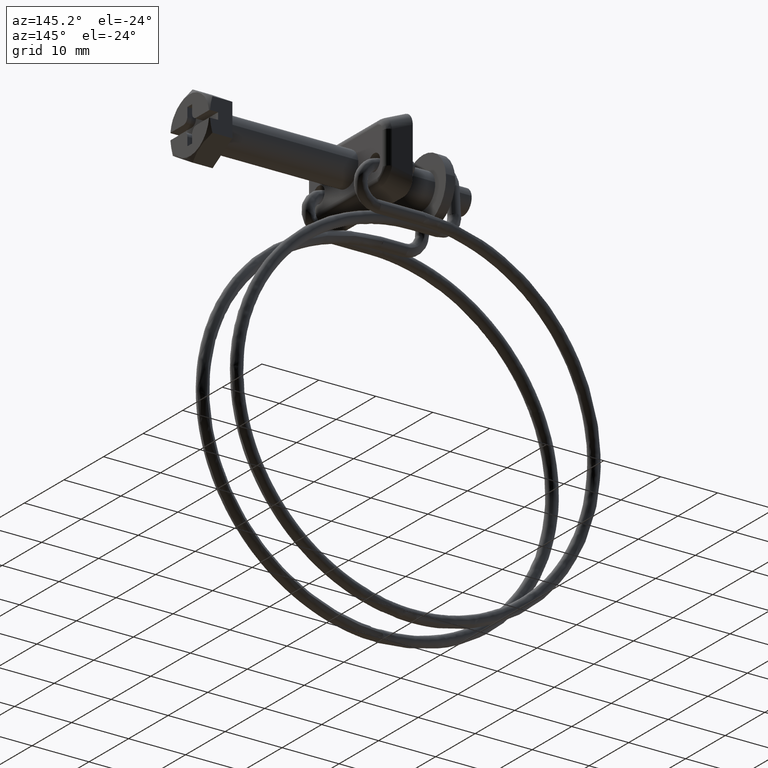
[diagram: clean part render]
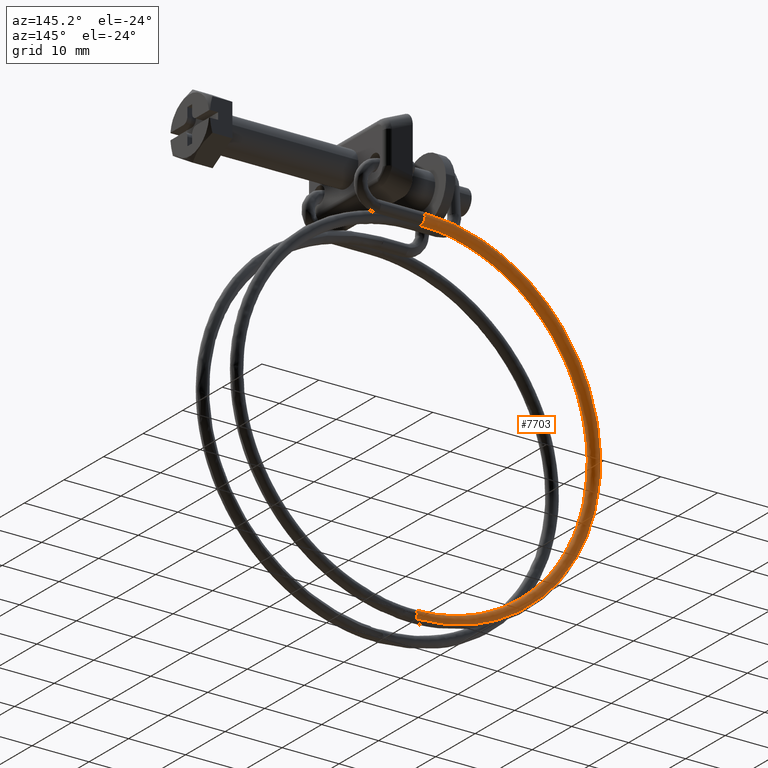
[diagram: same view with one face highlighted and labeled with its STEP entity id]
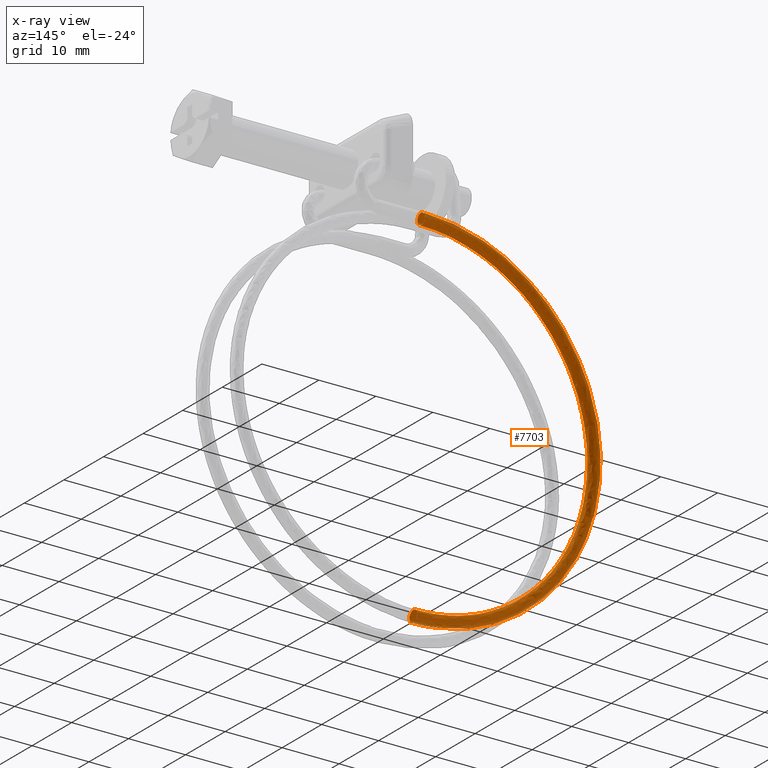
[diagram: x-ray of the same camera — body ghosted, the highlighted face saturated]
A machine part, auxiliary view. The second image highlights one B-rep face of the part: STEP entity #7703.
The next image is the same camera in x-ray: the body ghosted, the highlighted face saturated — about 0% of this face is hidden behind the body in this view.
In plain terms, the highlighted face is a freeform B-spline surface patch.
Its self-contained STEP definition (entity closure, byte-faithful):
#5722=CARTESIAN_POINT('',(-32.250000000001229,6.019897506656855,-6.893510855856247));
#5723=VERTEX_POINT('',#5722);
#5724=CARTESIAN_POINT('',(-32.250000000001243,6.374772539207871,-6.852100822124970));
#5725=VERTEX_POINT('',#5724);
#5726=CARTESIAN_POINT('',(-32.250000000001229,6.019897506656855,-6.893510855856247));
#5727=CARTESIAN_POINT('',(-32.250000000001229,6.134507705592427,-6.858807957711943));
#5728=CARTESIAN_POINT('',(-32.250000000001243,6.255203050966743,-6.844190522424267));
#5729=CARTESIAN_POINT('',(-32.250000000001243,6.374772539207871,-6.852100822124970));
#5730=B_SPLINE_CURVE_WITH_KNOTS('',3,(#5726,#5727,#5728,#5729),.UNSPECIFIED.,.F.,.U.,(4,4),(0.942811831421863,1.0),.UNSPECIFIED.);
#5731=EDGE_CURVE('',#5723,#5725,#5730,.T.);
#5784=CARTESIAN_POINT('',(-32.249999999482711,5.310047783035156,-7.846272508476856));
#5785=VERTEX_POINT('',#5784);
#5791=CARTESIAN_POINT('',(-32.250000000001222,6.245231271699173,-8.847901177875052));
#5792=VERTEX_POINT('',#5791);
#5793=CARTESIAN_POINT('',(-32.250000000001222,6.245231271699173,-8.847901177875052));
#5794=CARTESIAN_POINT('',(-32.249999999929067,5.983976199701746,-8.830944258154418));
#5795=CARTESIAN_POINT('',(-32.249999999829413,5.731308326816023,-8.706544961363123));
#5796=CARTESIAN_POINT('',(-32.249999999639087,5.399252156851949,-8.328407502336102));
#5797=CARTESIAN_POINT('',(-32.249999999549352,5.309720638134413,-8.087546129222295));
#5798=CARTESIAN_POINT('',(-32.249999999482711,5.310047783035156,-7.846272508476856));
#5799=B_SPLINE_CURVE_WITH_KNOTS('',3,(#5793,#5794,#5795,#5796,#5797,#5798),.UNSPECIFIED.,.F.,.U.,(4,2,4),(0.500000000000001,0.625000000000001,0.740274294737862),.UNSPECIFIED.);
#5800=EDGE_CURVE('',#5792,#5785,#5799,.T.);
#5802=CARTESIAN_POINT('',(-32.250000000001243,7.081757461709143,-7.214116515764815));
#5803=VERTEX_POINT('',#5802);
#5804=CARTESIAN_POINT('',(-32.250000000001243,7.081757461709143,-7.214116515764815));
#5805=CARTESIAN_POINT('',(-32.250000000001222,7.241248246422248,-7.408222404355124));
#5806=CARTESIAN_POINT('',(-32.250000000001222,7.324180694902152,-7.663972337171169));
#5807=CARTESIAN_POINT('',(-32.250000000001222,7.290945171064321,-8.176021289406702));
#5808=CARTESIAN_POINT('',(-32.250000000001222,7.166545884571243,-8.428681681627774));
#5809=CARTESIAN_POINT('',(-32.250000000001222,6.773102383082311,-8.774163792516555));
#5810=CARTESIAN_POINT('',(-32.250000000001222,6.506480927351519,-8.864858090139304));
#5811=CARTESIAN_POINT('',(-32.250000000001222,6.245231271699167,-8.847901177875052));
#5812=B_SPLINE_CURVE_WITH_KNOTS('',3,(#5804,#5805,#5806,#5807,#5808,#5809,#5810,#5811),.UNSPECIFIED.,.F.,.U.,(4,2,2,4),(0.130000178394050,0.250000000000001,0.375000000000001,0.500000000000001),.UNSPECIFIED.);
#5813=EDGE_CURVE('',#5803,#5792,#5812,.T.);
#5845=CARTESIAN_POINT('',(-32.249999999482711,5.310047783035156,-7.846272508476856));
#5846=CARTESIAN_POINT('',(-32.249999999489852,5.310074407605536,-7.825909869953435));
#5847=CARTESIAN_POINT('',(-32.249999999497142,5.310740629261320,-7.805544147238820));
#5848=CARTESIAN_POINT('',(-32.249999999600462,5.328996620805359,-7.523875708844595));
#5849=CARTESIAN_POINT('',(-32.249999999721339,5.453372197134920,-7.271107571601019));
#5850=CARTESIAN_POINT('',(-32.249999999893760,5.756780625886448,-7.004501732714942));
#5851=CARTESIAN_POINT('',(-32.249999999951321,5.884061348319174,-6.934885728901753));
#5852=CARTESIAN_POINT('',(-32.250000000001229,6.019897506656855,-6.893510855856247));
#5853=B_SPLINE_CURVE_WITH_KNOTS('',3,(#5845,#5846,#5847,#5848,#5849,#5850,#5851,#5852),.UNSPECIFIED.,.F.,.U.,(4,2,2,4),(0.740274294737862,0.750000000000001,0.875000000000000,0.942811831421863),.UNSPECIFIED.);
#5854=EDGE_CURVE('',#5785,#5723,#5853,.T.);
#6652=CARTESIAN_POINT('',(-32.250030118507993,4.300001999997921,-70.850000999971741));
#6653=VERTEX_POINT('',#6652);
#6669=CARTESIAN_POINT('',(-32.249999999998799,5.028950365822666,-70.534537336408775));
#6670=VERTEX_POINT('',#6669);
#6680=CARTESIAN_POINT('',(-32.249999999998799,4.300001999997920,-68.850001000000091));
#6681=VERTEX_POINT('',#6680);
#6682=CARTESIAN_POINT('',(-32.249999999998799,5.028950365822666,-70.534537336408775));
#6683=CARTESIAN_POINT('',(-32.249999999998799,5.200678609676848,-70.351169354862066));
#6684=CARTESIAN_POINT('',(-32.249999999998799,5.300001999997920,-70.101328038659986));
#6685=CARTESIAN_POINT('',(-32.249999999998799,5.300001999997920,-69.588201612201004));
#6686=CARTESIAN_POINT('',(-32.249999999998799,5.192228903607729,-69.328014341236809));
#6687=CARTESIAN_POINT('',(-32.249999999998799,4.821988658761200,-68.957774096390295));
#6688=CARTESIAN_POINT('',(-32.249999999998799,4.561801387797070,-68.850001000000091));
#6689=CARTESIAN_POINT('',(-32.249999999998799,4.300001999997920,-68.850001000000091));
#6690=B_SPLINE_CURVE_WITH_KNOTS('',3,(#6682,#6683,#6684,#6685,#6686,#6687,#6688,#6689),.UNSPECIFIED.,.F.,.U.,(4,2,2,4),(0.130000178393912,0.250000000000000,0.375000000000000,0.500000000000000),.UNSPECIFIED.);
#6691=EDGE_CURVE('',#6670,#6681,#6690,.T.);
#6693=CARTESIAN_POINT('',(-32.250000143398744,3.306810115031827,-69.734552577144655));
#6694=VERTEX_POINT('',#6693);
#6695=CARTESIAN_POINT('',(-32.249999999998799,4.300001999997920,-68.850001000000091));
#6696=CARTESIAN_POINT('',(-32.250000021078122,4.038184983407082,-68.849998888287388));
#6697=CARTESIAN_POINT('',(-32.250000049757077,3.777973728021444,-68.957769111638513));
#6698=CARTESIAN_POINT('',(-32.250000101966940,3.434978114600687,-69.300715831233632));
#6699=CARTESIAN_POINT('',(-32.250000125381227,3.333351196564613,-69.513112533559237));
#6700=CARTESIAN_POINT('',(-32.250000143398744,3.306810115031827,-69.734552577144655));
#6701=B_SPLINE_CURVE_WITH_KNOTS('',3,(#6695,#6696,#6697,#6698,#6699,#6700),.UNSPECIFIED.,.F.,.U.,(4,2,4),(0.500000000000000,0.625000000000000,0.731573927143940),.UNSPECIFIED.);
#6702=EDGE_CURVE('',#6681,#6694,#6701,.T.);
#6768=CARTESIAN_POINT('',(-32.250000143398744,3.306810115031827,-69.734552577144655));
#6769=CARTESIAN_POINT('',(-32.250000656129522,3.302225957859444,-69.772838956680815));
#6770=CARTESIAN_POINT('',(-32.250001202866663,3.299886312383937,-69.811395665297979));
#6771=CARTESIAN_POINT('',(-32.250005705966238,3.299904328683126,-70.111788687970275));
#6772=CARTESIAN_POINT('',(-32.250011044756363,3.407698784858643,-70.371978517569246));
#6773=CARTESIAN_POINT('',(-32.250021536300167,3.777981004968855,-70.742223790526808));
#6774=CARTESIAN_POINT('',(-32.250026624448672,4.038188632934677,-70.849999325430929));
#6775=CARTESIAN_POINT('',(-32.250030118507993,4.300001999997921,-70.850000999971741));
#6776=B_SPLINE_CURVE_WITH_KNOTS('',3,(#6768,#6769,#6770,#6771,#6772,#6773,#6774,#6775),.UNSPECIFIED.,.F.,.U.,(4,2,2,4),(0.731573927143940,0.750000000000000,0.875000000000000,1.0),.UNSPECIFIED.);
#6777=EDGE_CURVE('',#6694,#6653,#6776,.T.);
#7363=CARTESIAN_POINT('',(-32.250000000001251,7.081757106056601,-7.214116082923606));
#7364=CARTESIAN_POINT('',(-32.250000000001251,7.241247999844175,-7.408221643949427));
#7365=CARTESIAN_POINT('',(-32.250000000001251,7.324180719102401,-7.663971964327964));
#7366=CARTESIAN_POINT('',(-32.250000000001251,7.290945171064570,-8.176021289406590));
#7367=CARTESIAN_POINT('',(-32.250000000001251,7.166545884571540,-8.428681681627658));
#7368=CARTESIAN_POINT('',(-32.250000000001251,6.773102383082670,-8.774163792516509));
#7369=CARTESIAN_POINT('',(-32.250000000001251,6.506480927351900,-8.864858090139322));
#7370=CARTESIAN_POINT('',(-32.250000000001251,5.983981616047190,-8.830944265610919));
#7371=CARTESIAN_POINT('',(-32.250000000001251,5.731321223826090,-8.706544979117881));
#7372=CARTESIAN_POINT('',(-32.250000000001251,5.385839112937240,-8.313101477629020));
#7373=CARTESIAN_POINT('',(-32.250000000001251,5.295144815314440,-8.046480021898260));
#7374=CARTESIAN_POINT('',(-32.250000000001251,5.329058639842850,-7.523980710593540));
#7375=CARTESIAN_POINT('',(-32.250000000001251,5.453457926335871,-7.271320318372450));
#7376=CARTESIAN_POINT('',(-32.250000000001251,5.846901427824740,-6.925838207483600));
#7377=CARTESIAN_POINT('',(-32.250000000001251,6.113522883555519,-6.835143909860790));
#7378=CARTESIAN_POINT('',(-32.250000000001251,6.374772539207871,-6.852100822124990));
#7379=CARTESIAN_POINT('',(-36.395521321906017,7.081883421341194,-7.214149867424582));
#7380=CARTESIAN_POINT('',(-36.370782988964670,7.241373948595612,-7.408255127161497));
#7381=CARTESIAN_POINT('',(-36.337648178122073,7.324306171954610,-7.664005045231324));
#7382=CARTESIAN_POINT('',(-36.270461560034043,7.291069605652990,-8.176053557837019));
#7383=CARTESIAN_POINT('',(-36.236851237633353,7.166669803077500,-8.428713545396350));
#7384=CARTESIAN_POINT('',(-36.189945185707600,6.773225573853851,-8.774195093372642));
#7385=CARTESIAN_POINT('',(-36.176938295776651,6.506603914763780,-8.864889235350331));
#7386=CARTESIAN_POINT('',(-36.179160894538903,5.984104638258130,-8.830975437400859));
#7387=CARTESIAN_POINT('',(-36.194376696817102,5.731444483731830,-8.706576333058619));
#7388=CARTESIAN_POINT('',(-36.244425978056107,5.385963148143071,-8.313133432481930));
#7389=CARTESIAN_POINT('',(-36.278951261902847,5.295269379564720,-8.046512392739309));
#7390=CARTESIAN_POINT('',(-36.347509035472051,5.329184240891920,-7.524013911066881));
#7391=CARTESIAN_POINT('',(-36.381119357869153,5.453584029114950,-7.271353927230350));
#7392=CARTESIAN_POINT('',(-36.428025409786351,5.847028223724110,-6.925872388108600));
#7393=CARTESIAN_POINT('',(-36.441032299703501,6.113649870213569,-6.835178249461460));
#7394=CARTESIAN_POINT('',(-36.439921000327949,6.374899509589890,-6.852135148147125));
#7395=CARTESIAN_POINT('',(-40.537877786378303,7.055036512206437,-8.038335335161282));
#7396=CARTESIAN_POINT('',(-40.488420546646253,7.214686876221988,-8.227521913984415));
#7397=CARTESIAN_POINT('',(-40.422176944522327,7.297833191757711,-8.476683692386802));
#7398=CARTESIAN_POINT('',(-40.287856467638903,7.265030747490380,-8.975373597493631));
#7399=CARTESIAN_POINT('',(-40.220662215843248,7.140848122555381,-9.221350896781191));
#7400=CARTESIAN_POINT('',(-40.126886945623802,6.747706990622200,-9.557506185374640));
#7401=CARTESIAN_POINT('',(-40.100883379663813,6.481169380945241,-9.645614186666588));
#7402=CARTESIAN_POINT('',(-40.105326831826197,5.958655742149020,-9.612142304736508));
#7403=CARTESIAN_POINT('',(-40.135746487944793,5.705897264601380,-9.490768535830782));
#7404=CARTESIAN_POINT('',(-40.235805748475549,5.360092522020920,-9.107276857863489));
#7405=CARTESIAN_POINT('',(-40.304829204715503,5.269175664743710,-8.847520426439569));
#7406=CARTESIAN_POINT('',(-40.441890915806951,5.302647546649140,-8.338653176330560));
#7407=CARTESIAN_POINT('',(-40.509085167602599,5.426830171582380,-8.092675877042989));
#7408=CARTESIAN_POINT('',(-40.602860437822052,5.819971303515560,-7.756520588449559));
#7409=CARTESIAN_POINT('',(-40.628864003796153,6.086508913189000,-7.668412587157610));
#7410=CARTESIAN_POINT('',(-40.626642277707930,6.347765732587111,-7.685148528122645));
#7411=CARTESIAN_POINT('',(-48.195891007515513,6.952192647278499,-11.210633707659751));
#7412=CARTESIAN_POINT('',(-48.100745261741999,7.112456588522877,-11.380894023331740));
#7413=CARTESIAN_POINT('',(-47.973305943294967,7.196424736536115,-11.604705744758871));
#7414=CARTESIAN_POINT('',(-47.714900459824001,7.165288701201910,-12.051993980391700));
#7415=CARTESIAN_POINT('',(-47.585632283266101,7.041939702710661,-12.272257428742719));
#7416=CARTESIAN_POINT('',(-47.405227592985497,6.649961967096250,-12.572526860216900));
#7417=CARTESIAN_POINT('',(-47.355201981129603,6.383746963299810,-12.650683834391980));
#7418=CARTESIAN_POINT('',(-47.363750286169001,5.861178198067400,-12.618912369789861));
#7419=CARTESIAN_POINT('',(-47.422271564000603,5.608042327677470,-12.509179574310100));
#7420=CARTESIAN_POINT('',(-47.614765383203697,5.260996228230760,-12.163978506689361));
#7421=CARTESIAN_POINT('',(-47.747552579822099,5.169223051000190,-11.930635924938860));
#7422=CARTESIAN_POINT('',(-48.011231644602503,5.200994515626930,-11.474219357966600));
#7423=CARTESIAN_POINT('',(-48.140499821160397,5.324343514119940,-11.253955909615559));
#7424=CARTESIAN_POINT('',(-48.320904511441000,5.716321249734349,-10.953686478141400));
#7425=CARTESIAN_POINT('',(-48.370930123282797,5.982536253534320,-10.875529503966320));
#7426=CARTESIAN_POINT('',(-48.366655970770147,6.243820636150520,-10.891415236267370));
#7427=CARTESIAN_POINT('',(-51.707861088515109,6.876110055765944,-13.557459951356559));
#7428=CARTESIAN_POINT('',(-51.591768083313312,7.036827844722287,-13.713720984253319));
#7429=CARTESIAN_POINT('',(-51.436271761976663,7.121403881635406,-13.918781903505080));
#7430=CARTESIAN_POINT('',(-51.120975803208097,7.091500447245999,-14.328049611704040));
#7431=CARTESIAN_POINT('',(-50.963247982868303,6.968768061357050,-14.529293168549840));
#7432=CARTESIAN_POINT('',(-50.743125448977402,6.577650860860360,-14.803018730339719));
#7433=CARTESIAN_POINT('',(-50.682086213148203,6.311674480544010,-14.873815179058081));
#7434=CARTESIAN_POINT('',(-50.692516510476302,5.789064939673239,-14.843301470493920));
#7435=CARTESIAN_POINT('',(-50.763921815638199,5.535649921249410,-14.742179211556060));
#7436=CARTESIAN_POINT('',(-50.998795017497997,5.187685621222411,-14.425300749277120));
#7437=CARTESIAN_POINT('',(-51.160816604348298,5.095279045577621,-14.211495830542340));
#7438=CARTESIAN_POINT('',(-51.482547174520299,5.125792754129440,-13.793875720135240));
#7439=CARTESIAN_POINT('',(-51.640274994831998,5.248525140020149,-13.592632163261261));
#7440=CARTESIAN_POINT('',(-51.860397528751001,5.639642340520360,-13.318906601471401));
#7441=CARTESIAN_POINT('',(-51.921436764580299,5.905618720834950,-13.248110152767120));
#7442=CARTESIAN_POINT('',(-51.916221615902153,6.166923491270334,-13.263367007049190));
#7443=CARTESIAN_POINT('',(-57.568574069778251,6.686097644504510,-19.418539398091252));
#7444=CARTESIAN_POINT('',(-57.417534510980808,6.847948449002068,-19.539851692186829));
#7445=CARTESIAN_POINT('',(-57.215230369248708,6.934042060115251,-19.698101864232228));
#7446=CARTESIAN_POINT('',(-56.805023376803597,6.907215772567360,-20.012452604040650));
#7447=CARTESIAN_POINT('',(-56.599816005784099,6.786022739302510,-20.166213641352002));
#7448=CARTESIAN_POINT('',(-56.313431737000400,6.397053835784370,-20.373673324971350));
#7449=CARTESIAN_POINT('',(-56.234018345674500,6.131673170971681,-20.426094469258750));
#7450=CARTESIAN_POINT('',(-56.247588392461203,5.608961835090470,-20.398720706458349));
#7451=CARTESIAN_POINT('',(-56.340488268465101,5.354849932984130,-20.319094362390800));
#7452=CARTESIAN_POINT('',(-56.646063481428698,5.004593376091570,-20.072922332165248));
#7453=CARTESIAN_POINT('',(-56.856857137306292,4.910605542582180,-19.907892532144000));
#7454=CARTESIAN_POINT('',(-57.275435701025799,4.937979305394940,-19.587126471114999));
#7455=CARTESIAN_POINT('',(-57.480643072073498,5.059172338658030,-19.433365433831799));
#7456=CARTESIAN_POINT('',(-57.767027340829003,5.448141242172651,-19.225905750212451));
#7457=CARTESIAN_POINT('',(-57.846440732154903,5.713521906987100,-19.173484605910950));
#7458=CARTESIAN_POINT('',(-57.839655708775602,5.974877574927709,-19.187171487311169));
#7459=CARTESIAN_POINT('',(-59.915018379685073,6.572242591130991,-22.930486374828739));
#7460=CARTESIAN_POINT('',(-59.749992832059242,6.734772104732620,-23.030863363016120));
#7461=CARTESIAN_POINT('',(-59.528955694243791,6.821774786706214,-23.161072542831750));
#7462=CARTESIAN_POINT('',(-59.080764279259498,6.796791799148890,-23.418565271779951));
#7463=CARTESIAN_POINT('',(-58.856555078310997,6.676520882657880,-23.543882905745200));
#7464=CARTESIAN_POINT('',(-58.543652146310308,6.288838871202009,-23.711647410673901));
#7465=CARTESIAN_POINT('',(-58.456885219219302,6.023815057217760,-23.753061215874151));
#7466=CARTESIAN_POINT('',(-58.471711827672401,5.501042743177160,-23.727568371427900));
#7467=CARTESIAN_POINT('',(-58.573214063452397,5.246513387579410,-23.660818702456851));
#7468=CARTESIAN_POINT('',(-58.907084986183293,4.894883702480920,-23.457001871177798));
#7469=CARTESIAN_POINT('',(-59.137397751822597,4.799948649758930,-23.321189778820798));
#7470=CARTESIAN_POINT('',(-59.594735930378000,4.825441494201661,-23.058442096220599));
#7471=CARTESIAN_POINT('',(-59.818945131298300,4.945712410694430,-22.933124462262398));
#7472=CARTESIAN_POINT('',(-60.131848063242707,5.333394422146770,-22.765359957326648));
#7473=CARTESIAN_POINT('',(-60.218614990418203,5.598418236136300,-22.723946152119350));
#7474=CARTESIAN_POINT('',(-60.211201686191650,5.859804393156605,-22.736692574342470));
#7475=CARTESIAN_POINT('',(-63.086631398828303,6.323995458610351,-30.587860735203609));
#7476=CARTESIAN_POINT('',(-62.902704308519240,6.488004425638668,-30.642602840732671));
#7477=CARTESIAN_POINT('',(-62.656350224639581,6.576988704746185,-30.711688127977450));
#7478=CARTESIAN_POINT('',(-62.156824278380597,6.556023751587820,-30.845241485583550));
#7479=CARTESIAN_POINT('',(-61.906934812628698,6.437762869756350,-30.908558049289901));
#7480=CARTESIAN_POINT('',(-61.558192895798001,6.052886031944660,-30.989794808746300));
#7481=CARTESIAN_POINT('',(-61.461487939053903,5.788640083140290,-31.007214762127550));
#7482=CARTESIAN_POINT('',(-61.478012743790003,5.265734848606891,-30.985821952782249));
#7483=CARTESIAN_POINT('',(-61.591140748276501,5.010295525837460,-30.947140923393050));
#7484=CARTESIAN_POINT('',(-61.963252268108697,4.655672689141101,-30.835650162814300));
#7485=CARTESIAN_POINT('',(-62.219944382984799,4.558672883319339,-30.763526973078299));
#7486=CARTESIAN_POINT('',(-62.729664736310312,4.580065692668140,-30.627248036745549));
#7487=CARTESIAN_POINT('',(-62.979554202090299,4.698326574497850,-30.563931473032149));
#7488=CARTESIAN_POINT('',(-63.328296118977413,5.083203412313060,-30.482694713582799));
#7489=CARTESIAN_POINT('',(-63.425001075636992,5.347449361112150,-30.465274760208601));
#7490=CARTESIAN_POINT('',(-63.416738673268938,5.608901978378849,-30.475971164881251));
#7491=CARTESIAN_POINT('',(-63.910557685666987,6.189700885276722,-34.730280477062472));
#7492=CARTESIAN_POINT('',(-63.721721924941043,6.354510022567766,-34.760340713426537));
#7493=CARTESIAN_POINT('',(-63.468793110796582,6.444566059030328,-34.796366818039203));
#7494=CARTESIAN_POINT('',(-62.955935750202613,6.425774281154631,-34.862886907016048));
#7495=CARTESIAN_POINT('',(-62.699377201411210,6.308600537273289,-34.892669861872797));
#7496=CARTESIAN_POINT('',(-62.341328014280997,5.925240892551210,-34.927107629669251));
#7497=CARTESIAN_POINT('',(-62.242042182940502,5.661415656272401,-34.931550380577200));
#7498=CARTESIAN_POINT('',(-62.259008003845103,5.138438530988911,-34.912375097041163));
#7499=CARTESIAN_POINT('',(-62.375155183403301,4.882507047629660,-34.888875140757897));
#7500=CARTESIAN_POINT('',(-62.757197664553587,4.526265348960100,-34.827319426922998));
#7501=CARTESIAN_POINT('',(-63.020740412456703,4.428148810434675,-34.789642719129098));
#7502=CARTESIAN_POINT('',(-63.544064249797501,4.447324093981306,-34.721765077330062));
#7503=CARTESIAN_POINT('',(-63.800622798588897,4.564497837860890,-34.691982122459237));
#7504=CARTESIAN_POINT('',(-64.158671985719110,4.947857482584720,-34.657544354676901));
#7505=CARTESIAN_POINT('',(-64.257957817059605,5.211682718861770,-34.653101603754848));
#7506=CARTESIAN_POINT('',(-64.249474906607304,5.473171281505280,-34.662689245529933));
#7507=CARTESIAN_POINT('',(-63.910557685666987,5.921006265786429,-43.018373351168528));
#7508=CARTESIAN_POINT('',(-63.721721924941043,6.087416353765891,-42.999051028224727));
#7509=CARTESIAN_POINT('',(-63.468793110796582,6.179616722194755,-42.968933558578570));
#7510=CARTESIAN_POINT('',(-62.955935750202613,6.165172952032610,-42.901335994593950));
#7511=CARTESIAN_POINT('',(-62.699377201411210,6.050174313030739,-42.864026160994250));
#7512=CARTESIAN_POINT('',(-62.341328014280997,5.669850211417420,-42.804830259240099));
#7513=CARTESIAN_POINT('',(-62.242042182940502,5.406866721001320,-42.783308709564707));
#7514=CARTESIAN_POINT('',(-62.259008003845103,4.883745759381810,-42.768570168572353));
#7515=CARTESIAN_POINT('',(-62.375155183403301,4.626829579555830,-42.775443934752801));
#7516=CARTESIAN_POINT('',(-62.757197664553587,4.267348922490000,-42.813796391945353));
#7517=CARTESIAN_POINT('',(-63.020740412456703,4.166998067002440,-42.845038914972598));
#7518=CARTESIAN_POINT('',(-63.544064249797501,4.181736607984215,-42.914016021065237));
#7519=CARTESIAN_POINT('',(-63.800622798588897,4.296735246987851,-42.951325854679062));
#7520=CARTESIAN_POINT('',(-64.158671985719110,4.677059348599411,-43.010521756419152));
#7521=CARTESIAN_POINT('',(-64.257957817059605,4.940042839017269,-43.032043306108612));
#7522=CARTESIAN_POINT('',(-64.249474906607304,5.201603319825265,-43.039412576597726));
#7523=CARTESIAN_POINT('',(-63.086631398855658,5.786711692453394,-47.160793093005204));
#7524=CARTESIAN_POINT('',(-62.902704308548621,5.953921950693378,-47.116788900890697));
#7525=CARTESIAN_POINT('',(-62.656350224694421,6.047194076478932,-47.053612248619011));
#7526=CARTESIAN_POINT('',(-62.156824278407797,6.034923481601190,-46.918981416012102));
#7527=CARTESIAN_POINT('',(-61.906934812627803,5.921011980549451,-46.848137973555708));
#7528=CARTESIAN_POINT('',(-61.558192895797099,5.542205072027500,-46.742143080148701));
#7529=CARTESIAN_POINT('',(-61.461487939081103,5.279642294135200,-46.707644328000100));
#7530=CARTESIAN_POINT('',(-61.478012743817203,4.756449441765590,-46.695123312809898));
#7531=CARTESIAN_POINT('',(-61.591140748275599,4.499041101349800,-46.717178152103301));
#7532=CARTESIAN_POINT('',(-61.963252268107787,4.137941582310775,-46.805465656032602));
#7533=CARTESIAN_POINT('',(-62.219944383012098,4.036473994119540,-46.871154661002002));
#7534=CARTESIAN_POINT('',(-62.729664736365713,4.048995009297390,-47.008533061621300));
#7535=CARTESIAN_POINT('',(-62.979554202117590,4.162906510354415,-47.079376504091812));
#7536=CARTESIAN_POINT('',(-63.328296119004712,4.541713418874600,-47.185371397498798));
#7537=CARTESIAN_POINT('',(-63.425001075692492,4.804276196768660,-47.219870149647498));
#7538=CARTESIAN_POINT('',(-63.416738673324438,5.065872622953465,-47.226130657235551));
#7539=CARTESIAN_POINT('',(-59.915018379655841,5.538464559931586,-54.818167453423932));
#7540=CARTESIAN_POINT('',(-59.749992832027957,5.707154271602668,-54.728528378662489));
#7541=CARTESIAN_POINT('',(-59.528955694187047,5.802407994518842,-54.604227833806682));
#7542=CARTESIAN_POINT('',(-59.080764279230387,5.794155434036609,-54.345657629843899));
#7543=CARTESIAN_POINT('',(-58.856555078310102,5.682253967644390,-54.212813117142687));
#7544=CARTESIAN_POINT('',(-58.543652146309412,5.306252232763099,-54.020290478249187));
#7545=CARTESIAN_POINT('',(-58.456885219190198,5.044467320054210,-53.961797874281608));
#7546=CARTESIAN_POINT('',(-58.471711827643297,4.521141547191800,-53.953376894206500));
#7547=CARTESIAN_POINT('',(-58.573214063451502,4.262823239604330,-54.003500373067602));
#7548=CARTESIAN_POINT('',(-58.907084986182397,3.898730568967435,-54.184113947711403));
#7549=CARTESIAN_POINT('',(-59.137397751793500,3.795198227676430,-54.313491855301798));
#7550=CARTESIAN_POINT('',(-59.594735930320802,3.803619207763870,-54.577339002202599));
#7551=CARTESIAN_POINT('',(-59.818945131269203,3.915520674150796,-54.710183514889700));
#7552=CARTESIAN_POINT('',(-60.131848063213603,4.291522409033850,-54.902706153783200));
#7553=CARTESIAN_POINT('',(-60.218614990360898,4.553307321740991,-54.961198757750793));
#7554=CARTESIAN_POINT('',(-60.211201686134352,4.814970208172190,-54.965409247795399));
#7555=CARTESIAN_POINT('',(-57.568574069766143,5.424609506556346,-58.330114430147788));
#7556=CARTESIAN_POINT('',(-57.417534510959200,5.593977927326954,-58.219540049470503));
#7557=CARTESIAN_POINT('',(-57.215230369265903,5.690140721105366,-58.067198512365863));
#7558=CARTESIAN_POINT('',(-56.805023376820500,5.683731460624030,-57.751770297550003));
#7559=CARTESIAN_POINT('',(-56.599816005758598,5.572752111003900,-57.590482381523898));
#7560=CARTESIAN_POINT('',(-56.313431737002787,5.198037268183120,-57.358264563932998));
#7561=CARTESIAN_POINT('',(-56.234018345690998,4.936609206300900,-57.288764620850102));
#7562=CARTESIAN_POINT('',(-56.247588392463598,4.413222455280865,-57.282224559150301));
#7563=CARTESIAN_POINT('',(-56.340488268453498,4.154486694201975,-57.345224713100912));
#7564=CARTESIAN_POINT('',(-56.646063481389213,3.789020895362680,-57.568193486683803));
#7565=CARTESIAN_POINT('',(-56.856857137309198,3.684541334855570,-57.726789101938301));
#7566=CARTESIAN_POINT('',(-57.275435701028997,3.691081396572985,-58.048654627260497));
#7567=CARTESIAN_POINT('',(-57.480643072062797,3.802060746191355,-58.209942543286601));
#7568=CARTESIAN_POINT('',(-57.767027340846703,4.176775589010370,-58.442160360849293));
#7569=CARTESIAN_POINT('',(-57.846440732172603,4.438203650894355,-58.511660303960397));
#7570=CARTESIAN_POINT('',(-57.839655708786253,4.699897026404372,-58.514930334810302));
#7571=CARTESIAN_POINT('',(-51.707861088523643,5.234597095299559,-64.191193876864943));
#7572=CARTESIAN_POINT('',(-51.591768083331310,5.405098531616050,-64.045670757390411));
#7573=CARTESIAN_POINT('',(-51.436271761955872,5.502778899594189,-63.846518473130971));
#7574=CARTESIAN_POINT('',(-51.120975803187697,5.499446785937140,-63.436173289924000));
#7575=CARTESIAN_POINT('',(-50.963247982890202,5.390006788944640,-63.227402854306803));
#7576=CARTESIAN_POINT('',(-50.743125448971412,5.017440243109459,-62.928919158573102));
#7577=CARTESIAN_POINT('',(-50.682086213128102,4.756607896730900,-62.841043911115499));
#7578=CARTESIAN_POINT('',(-50.692516510470298,4.233119350696905,-62.837643795123107));
#7579=CARTESIAN_POINT('',(-50.763921815646299,3.973686705935510,-62.922139863972298));
#7580=CARTESIAN_POINT('',(-50.998795017534000,3.605928650223595,-63.215815069609093));
#7581=CARTESIAN_POINT('',(-51.160816604341903,3.499867831858910,-63.423185803577397));
#7582=CARTESIAN_POINT('',(-51.482547174513499,3.503267947833725,-63.841905378278398));
#7583=CARTESIAN_POINT('',(-51.640274994839203,3.612707944827985,-64.050675813895609));
#7584=CARTESIAN_POINT('',(-51.860397528729813,3.985274490664925,-64.349159509657397));
#7585=CARTESIAN_POINT('',(-51.921436764558997,4.246106837041724,-64.437034757086906));
#7586=CARTESIAN_POINT('',(-51.916221615887892,4.507851110058727,-64.438734815083109));
#7587=CARTESIAN_POINT('',(-48.195891007509971,5.158514503786918,-66.538020120508236));
#7588=CARTESIAN_POINT('',(-48.100745261741807,5.329469787812394,-66.378497718246081));
#7589=CARTESIAN_POINT('',(-47.973305943281979,5.427758044692161,-66.160594631811833));
#7590=CARTESIAN_POINT('',(-47.714900459811403,5.425658531986821,-65.712228921198701));
#7591=CARTESIAN_POINT('',(-47.585632283267799,5.316835147591331,-65.484438594076408));
#7592=CARTESIAN_POINT('',(-47.405227592959399,4.945129136872110,-65.159411028644413));
#7593=CARTESIAN_POINT('',(-47.355201981131700,4.684535413978931,-65.064175255673803));
#7594=CARTESIAN_POINT('',(-47.363750286142903,4.161006092304804,-65.062032895775602));
#7595=CARTESIAN_POINT('',(-47.422271563974412,3.901294299511265,-65.155139501152604));
#7596=CARTESIAN_POINT('',(-47.614765383177200,3.532618043221705,-65.477137312131106));
#7597=CARTESIAN_POINT('',(-47.747552579809501,3.425923826436650,-65.704045709143202));
#7598=CARTESIAN_POINT('',(-48.011231644575403,3.428066186340945,-66.161561740381103));
#7599=CARTESIAN_POINT('',(-48.140499821132998,3.536889570732035,-66.389352067447106));
#7600=CARTESIAN_POINT('',(-48.320904511427401,3.908595581451255,-66.714379632907196));
#7601=CARTESIAN_POINT('',(-48.370930123269197,4.169189304347955,-66.809615405849684));
#7602=CARTESIAN_POINT('',(-48.366655970756547,4.430953965185019,-66.810686585798749));
#7603=CARTESIAN_POINT('',(-40.537877786379418,5.055670638854561,-69.710318493129620));
#7604=CARTESIAN_POINT('',(-40.488420546642040,5.227239500110160,-69.531869827737125));
#7605=CARTESIAN_POINT('',(-40.422176944530882,5.326349589464275,-69.288616684274785));
#7606=CARTESIAN_POINT('',(-40.287856467647053,5.325916485695480,-68.788849304132796));
#7607=CARTESIAN_POINT('',(-40.220662215837102,5.217926727750780,-68.535345126130508));
#7608=CARTESIAN_POINT('',(-40.126886945645552,4.847384113346800,-68.174431703579501));
#7609=CARTESIAN_POINT('',(-40.100883379657297,4.587112996323571,-68.069244903548309));
#7610=CARTESIAN_POINT('',(-40.105326831847847,4.063528548220300,-68.068802960921914));
#7611=CARTESIAN_POINT('',(-40.135746487966550,3.803439362580955,-68.173550539724701));
#7612=CARTESIAN_POINT('',(-40.235805748497647,3.433521749426920,-68.533838961049497));
#7613=CARTESIAN_POINT('',(-40.304829204723653,3.325971212693790,-68.787161207678494));
#7614=CARTESIAN_POINT('',(-40.441890915829603,3.326413155314125,-69.297127922109112));
#7615=CARTESIAN_POINT('',(-40.509085167625507,3.434402913263220,-69.550632100167789));
#7616=CARTESIAN_POINT('',(-40.602860437831147,3.804945527667210,-69.911545522690702));
#7617=CARTESIAN_POINT('',(-40.628864003805347,4.065216644686915,-70.016732322749988));
#7618=CARTESIAN_POINT('',(-40.626642277717103,4.327008868738547,-70.016953294063200));
#7619=CARTESIAN_POINT('',(-36.395521353312461,5.028951062079603,-70.534537770279996));
#7620=CARTESIAN_POINT('',(-36.370783020109897,5.200679386999618,-70.351170128559133));
#7621=CARTESIAN_POINT('',(-36.337648208899488,5.300003063916265,-70.101328446518593));
#7622=CARTESIAN_POINT('',(-36.270461590082348,5.300003046349540,-69.588201646459495));
#7623=CARTESIAN_POINT('',(-36.236851267325747,5.192229941231380,-69.328014371781208));
#7624=CARTESIAN_POINT('',(-36.189945214862149,4.821989684326980,-68.957774114298104));
#7625=CARTESIAN_POINT('',(-36.176938324804503,4.561802410105650,-68.850001008983398));
#7626=CARTESIAN_POINT('',(-36.179160923552750,4.038203635377601,-68.850000991042393));
#7627=CARTESIAN_POINT('',(-36.194376725986103,3.778016368535625,-68.957774078556895));
#7628=CARTESIAN_POINT('',(-36.244426007752303,3.407776136979165,-69.328014310691600));
#7629=CARTESIAN_POINT('',(-36.278951291979453,3.300003049675505,-69.588201577990802));
#7630=CARTESIAN_POINT('',(-36.347509066282747,3.300003067599050,-70.111800353561193));
#7631=CARTESIAN_POINT('',(-36.381119389049950,3.407776172717110,-70.371987628246799));
#7632=CARTESIAN_POINT('',(-36.428025441503003,3.778016429622090,-70.742227885748704));
#7633=CARTESIAN_POINT('',(-36.441032331571151,4.038203703841515,-70.850000991042506));
#7634=CARTESIAN_POINT('',(-36.439921032191720,4.300003091205503,-70.850001000012995));
#7635=CARTESIAN_POINT('',(-32.249999999998799,5.028949982881795,-70.534537745304888));
#7636=CARTESIAN_POINT('',(-32.249999999998799,5.200678314364720,-70.351170097699338));
#7637=CARTESIAN_POINT('',(-32.249999999998799,5.300001999997920,-70.101328412287330));
#7638=CARTESIAN_POINT('',(-32.249999999998799,5.300001999997920,-69.588201612201004));
#7639=CARTESIAN_POINT('',(-32.249999999998799,5.192228903607729,-69.328014341236809));
#7640=CARTESIAN_POINT('',(-32.249999999998799,4.821988658761200,-68.957774096390295));
#7641=CARTESIAN_POINT('',(-32.249999999998799,4.561801387797070,-68.850001000000091));
#7642=CARTESIAN_POINT('',(-32.249999999998799,4.038202612198769,-68.850001000000091));
#7643=CARTESIAN_POINT('',(-32.249999999998799,3.778015341234640,-68.957774096390295));
#7644=CARTESIAN_POINT('',(-32.249999999998799,3.407775096388105,-69.328014341236809));
#7645=CARTESIAN_POINT('',(-32.249999999998799,3.300001999997920,-69.588201612201004));
#7646=CARTESIAN_POINT('',(-32.249999999998799,3.300001999997920,-70.111800387799292));
#7647=CARTESIAN_POINT('',(-32.249999999998799,3.407775096388105,-70.371987658763402));
#7648=CARTESIAN_POINT('',(-32.249999999998799,3.778015341234640,-70.742227903609901));
#7649=CARTESIAN_POINT('',(-32.249999999998799,4.038202612198769,-70.850001000000091));
#7650=CARTESIAN_POINT('',(-32.249999999998799,4.300001999997920,-70.850001000000091));
#7651=B_SPLINE_SURFACE_WITH_KNOTS('',3,3,((#7363,#7379,#7395,#7411,#7427,#7443,#7459,#7475,#7491,#7507,#7523,#7539,#7555,#7571,#7587,#7603,#7619,#7635),(#7364,#7380,#7396,#7412,#7428,#7444,#7460,#7476,#7492,#7508,#7524,#7540,#7556,#7572,#7588,#7604,#7620,#7636),(#7365,#7381,#7397,#7413,#7429,#7445,#7461,#7477,#7493,#7509,#7525,#7541,#7557,#7573,#7589,#7605,#7621,#7637),(#7366,#7382,#7398,#7414,#7430,#7446,#7462,#7478,#7494,#7510,#7526,#7542,#7558,#7574,#7590,#7606,#7622,#7638),(#7367,#7383,#7399,#7415,#7431,#7447,#7463,#7479,#7495,#7511,#7527,#7543,#7559,#7575,#7591,#7607,#7623,#7639),(#7368,#7384,#7400,#7416,#7432,#7448,#7464,#7480,#7496,#7512,#7528,#7544,#7560,#7576,#7592,#7608,#7624,#7640),(#7369,#7385,#7401,#7417,#7433,#7449,#7465,#7481,#7497,#7513,#7529,#7545,#7561,#7577,#7593,#7609,#7625,#7641),(#7370,#7386,#7402,#7418,#7434,#7450,#7466,#7482,#7498,#7514,#7530,#7546,#7562,#7578,#7594,#7610,#7626,#7642),(#7371,#7387,#7403,#7419,#7435,#7451,#7467,#7483,#7499,#7515,#7531,#7547,#7563,#7579,#7595,#7611,#7627,#7643),(#7372,#7388,#7404,#7420,#7436,#7452,#7468,#7484,#7500,#7516,#7532,#7548,#7564,#7580,#7596,#7612,#7628,#7644),(#7373,#7389,#7405,#7421,#7437,#7453,#7469,#7485,#7501,#7517,#7533,#7549,#7565,#7581,#7597,#7613,#7629,#7645),(#7374,#7390,#7406,#7422,#7438,#7454,#7470,#7486,#7502,#7518,#7534,#7550,#7566,#7582,#7598,#7614,#7630,#7646),(#7375,#7391,#7407,#7423,#7439,#7455,#7471,#7487,#7503,#7519,#7535,#7551,#7567,#7583,#7599,#7615,#7631,#7647),(#7376,#7392,#7408,#7424,#7440,#7456,#7472,#7488,#7504,#7520,#7536,#7552,#7568,#7584,#7600,#7616,#7632,#7648),(#7377,#7393,#7409,#7425,#7441,#7457,#7473,#7489,#7505,#7521,#7537,#7553,#7569,#7585,#7601,#7617,#7633,#7649),(#7378,#7394,#7410,#7426,#7442,#7458,#7474,#7490,#7506,#7522,#7538,#7554,#7570,#7586,#7602,#7618,#7634,#7650)),.UNSPECIFIED.,.F.,.F.,.U.,(4,2,2,2,2,2,2,4),(4,2,2,2,2,2,2,2,4),(0.0,0.753982236861555,1.539380400259007,2.324778563656460,3.110176727053913,3.895574890451365,4.680973053848819,5.466371217246271),(0.0,12.571232885306880,25.142465770613750,37.713698655920581,50.284931541227607,62.856164426534512,75.427397311841375,87.998630197148259,100.569863082455100),.UNSPECIFIED.);
#7652=ORIENTED_EDGE('',*,*,#6691,.F.);
#7653=CARTESIAN_POINT('',(-32.250000000001243,7.081757461709143,-7.214116515764815));
#7654=CARTESIAN_POINT('',(-36.395521321906017,7.081883421341194,-7.214149867424582));
#7655=CARTESIAN_POINT('',(-40.537877786378303,7.055036512206436,-8.038335335161282));
#7656=CARTESIAN_POINT('',(-48.195891007515499,6.952192647278499,-11.210633707659751));
#7657=CARTESIAN_POINT('',(-51.707861088515102,6.876110055765943,-13.557459951356570));
#7658=CARTESIAN_POINT('',(-57.568574069778244,6.686097644504510,-19.418539398091252));
#7659=CARTESIAN_POINT('',(-59.915018379685073,6.572242591130991,-22.930486374828739));
#7660=CARTESIAN_POINT('',(-63.086631398828303,6.323995458610351,-30.587860735203609));
#7661=CARTESIAN_POINT('',(-63.910557685666987,6.189700885276723,-34.730280477062479));
#7662=CARTESIAN_POINT('',(-63.910557685666987,5.921006265786429,-43.018373351168528));
#7663=CARTESIAN_POINT('',(-63.086631398855673,5.786711692453395,-47.160793093005204));
#7664=CARTESIAN_POINT('',(-59.915018379655841,5.538464559931587,-54.818167453423932));
#7665=CARTESIAN_POINT('',(-57.568574069766143,5.424609506556346,-58.330114430147781));
#7666=CARTESIAN_POINT('',(-51.707861088523643,5.234597095299558,-64.191193876864943));
#7667=CARTESIAN_POINT('',(-48.195891007509957,5.158514503786918,-66.538020120508236));
#7668=CARTESIAN_POINT('',(-40.537877786379433,5.055670638854561,-69.710318493129620));
#7669=CARTESIAN_POINT('',(-36.395521353312461,5.028951062079603,-70.534537770280011));
#7670=CARTESIAN_POINT('',(-32.249999999998799,5.028950365822666,-70.534537336408775));
#7671=B_SPLINE_CURVE_WITH_KNOTS('',3,(#7653,#7654,#7655,#7656,#7657,#7658,#7659,#7660,#7661,#7662,#7663,#7664,#7665,#7666,#7667,#7668,#7669,#7670),.UNSPECIFIED.,.F.,.U.,(4,2,2,2,2,2,2,2,4),(0.048649311547058,0.074330496389507,0.100011681231957,0.125692866074406,0.151374050916856,0.177055235759306,0.202736420601755,0.228417605444205,0.254098790286654),.UNSPECIFIED.);
#7672=EDGE_CURVE('',#5803,#6670,#7671,.T.);
#7673=ORIENTED_EDGE('',*,*,#7672,.F.);
#7674=ORIENTED_EDGE('',*,*,#5813,.T.);
#7675=ORIENTED_EDGE('',*,*,#5800,.T.);
#7676=ORIENTED_EDGE('',*,*,#5854,.T.);
#7677=ORIENTED_EDGE('',*,*,#5731,.T.);
#7678=CARTESIAN_POINT('',(-32.250000000001243,6.374772539207871,-6.852100822124970));
#7679=CARTESIAN_POINT('',(-36.439921000342139,6.374899509589890,-6.852135148147105));
#7680=CARTESIAN_POINT('',(-40.626642669754453,6.347765732587112,-7.685148528122256));
#7681=CARTESIAN_POINT('',(-48.366657871740763,6.243820636150521,-10.891415236265560));
#7682=CARTESIAN_POINT('',(-51.916224633153931,6.166923491270335,-13.263367007046330));
#7683=CARTESIAN_POINT('',(-57.839661513871349,5.974877574927710,-19.187171487305690));
#7684=CARTESIAN_POINT('',(-60.211209161752890,5.859804393156606,-22.736692574335422));
#7685=CARTESIAN_POINT('',(-63.416749791067389,5.608901978378850,-30.475971164870771));
#7686=CARTESIAN_POINT('',(-64.249487994747071,5.473171281505281,-34.662689245517598));
#7687=CARTESIAN_POINT('',(-64.249491936976710,5.201603319825265,-43.039412576581690));
#7688=CARTESIAN_POINT('',(-63.416757674035168,5.065872622953466,-47.226130657217659));
#7689=CARTESIAN_POINT('',(-60.211224329082292,4.814970208172190,-54.965409247774083));
#7690=CARTESIAN_POINT('',(-57.839680022199680,4.699897026404373,-58.514930334787401));
#7691=CARTESIAN_POINT('',(-51.916248717145287,4.507851110058728,-64.438734815057600));
#7692=CARTESIAN_POINT('',(-48.366684188295132,4.430953965185020,-66.810686585772189));
#7693=CARTESIAN_POINT('',(-40.626672004179760,4.327008868738548,-70.016953294035218));
#7694=CARTESIAN_POINT('',(-36.439951150700900,4.300003091205504,-70.850000999984644));
#7695=CARTESIAN_POINT('',(-32.250030118507993,4.300001999997921,-70.850000999971741));
#7696=B_SPLINE_CURVE_WITH_KNOTS('',3,(#7678,#7679,#7680,#7681,#7682,#7683,#7684,#7685,#7686,#7687,#7688,#7689,#7690,#7691,#7692,#7693,#7694,#7695),.UNSPECIFIED.,.F.,.U.,(4,2,2,2,2,2,2,2,4),(0.048649311547058,0.074330496389507,0.100011681231957,0.125692866074406,0.151374050916856,0.177055235759306,0.202736420601755,0.228417605444205,0.254098790286654),.UNSPECIFIED.);
#7697=EDGE_CURVE('',#5725,#6653,#7696,.T.);
#7698=ORIENTED_EDGE('',*,*,#7697,.T.);
#7699=ORIENTED_EDGE('',*,*,#6777,.F.);
#7700=ORIENTED_EDGE('',*,*,#6702,.F.);
#7701=EDGE_LOOP('',(#7652,#7673,#7674,#7675,#7676,#7677,#7698,#7699,#7700));
#7702=FACE_OUTER_BOUND('',#7701,.T.);
#7703=ADVANCED_FACE('',(#7702),#7651,.T.);